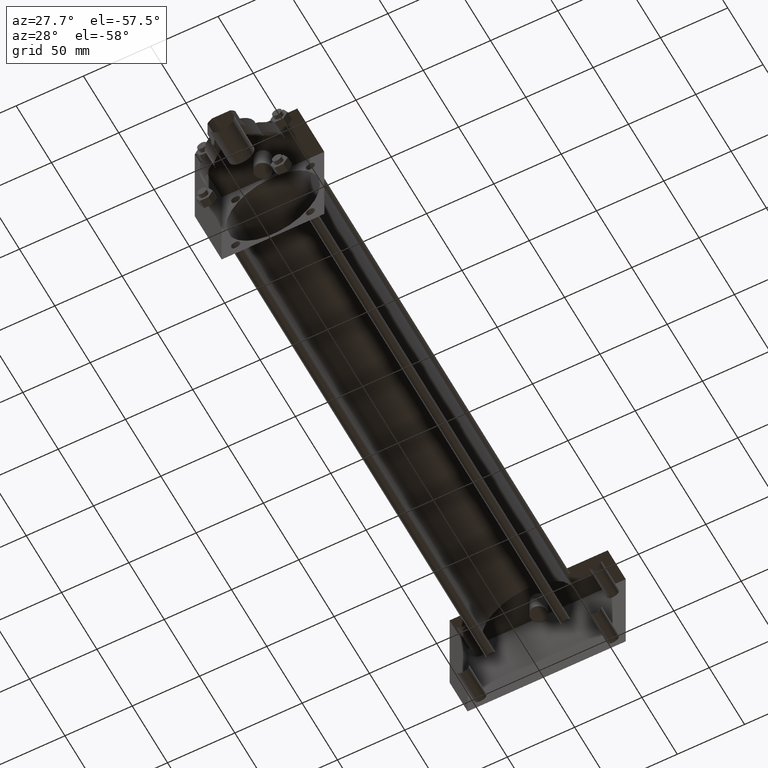
[diagram: clean part render]
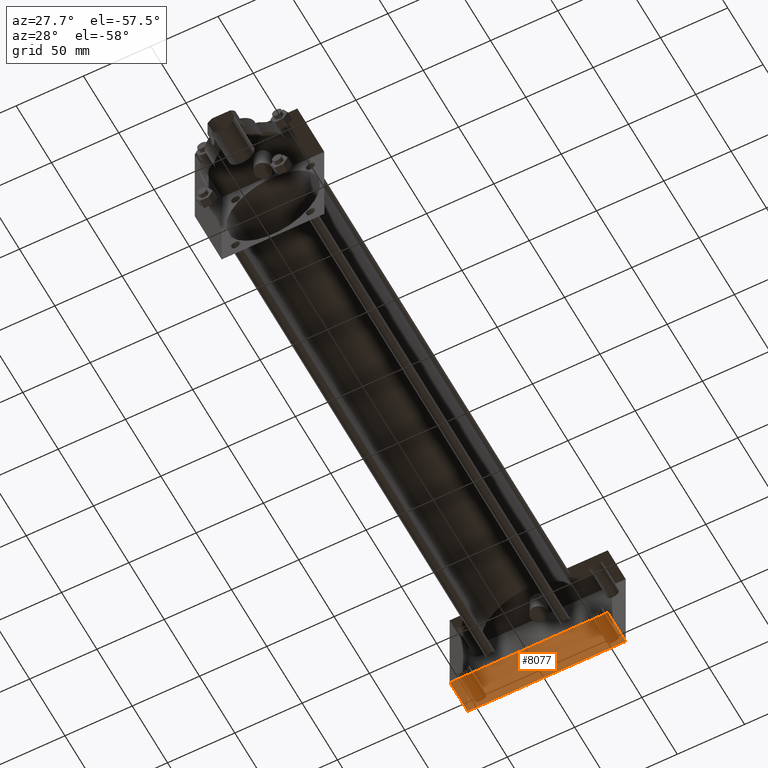
[diagram: same view with one face highlighted and labeled with its STEP entity id]
A machine part, auxiliary view. The second image highlights one B-rep face of the part: STEP entity #8077.
In plain terms, the highlighted planar face has unit normal (0, 0, -1).
Its self-contained STEP definition (entity closure, byte-faithful):
#3477=EDGE_CURVE('',#3482,#3483,#3478,.T.);
#3478=LINE('',#3479,#3480);
#3479=CARTESIAN_POINT('',(-5.873750000E+001,4.349750000E+002,-3.810000000E+001));
#3480=VECTOR('',#3481,1.0E+000);
#3481=DIRECTION('',(1.0E+000,0.0E+000,0.0E+000));
#3482=VERTEX_POINT('',#3484);
#3483=VERTEX_POINT('',#3485);
#3484=CARTESIAN_POINT('',(-5.873750000E+001,4.349750000E+002,-3.810000000E+001));
#3485=CARTESIAN_POINT('',(5.873750000E+001,4.349750000E+002,-3.810000000E+001));
#3681=VERTEX_POINT('',#3683);
#3683=CARTESIAN_POINT('',(-5.873750000E+001,4.603750000E+002,-3.810000000E+001));
#3684=EDGE_CURVE('',#3681,#3482,#3685,.T.);
#3685=LINE('',#3686,#3687);
#3686=CARTESIAN_POINT('',(-5.873750000E+001,4.603750000E+002,-3.810000000E+001));
#3687=VECTOR('',#3688,1.0E+000);
#3688=DIRECTION('',(0.0E+000,-1.0E+000,0.0E+000));
#3723=EDGE_CURVE('',#3728,#3483,#3724,.T.);
#3724=LINE('',#3725,#3726);
#3725=CARTESIAN_POINT('',(5.873750000E+001,4.603750000E+002,-3.810000000E+001));
#3726=VECTOR('',#3727,1.0E+000);
#3727=DIRECTION('',(0.0E+000,-1.0E+000,0.0E+000));
#3728=VERTEX_POINT('',#3729);
#3729=CARTESIAN_POINT('',(5.873750000E+001,4.603750000E+002,-3.810000000E+001));
#3749=FACE_OUTER_BOUND('',#3751,.T.);
#3750=FACE_BOUND('',#3752,.T.);
#3751=EDGE_LOOP('',(#3753,#3754,#3755,#3756));
#3752=EDGE_LOOP('',(#3762));
#3753=ORIENTED_EDGE('',*,*,#3723,.T.);
#3754=ORIENTED_EDGE('',*,*,#3477,.F.);
#3755=ORIENTED_EDGE('',*,*,#3684,.F.);
#3756=ORIENTED_EDGE('',*,*,#3757,.T.);
#3757=EDGE_CURVE('',#3681,#3728,#3758,.T.);
#3758=LINE('',#3759,#3760);
#3759=CARTESIAN_POINT('',(-5.873750000E+001,4.603750000E+002,-3.810000000E+001));
#3760=VECTOR('',#3761,1.0E+000);
#3761=DIRECTION('',(1.0E+000,0.0E+000,0.0E+000));
#3762=ORIENTED_EDGE('',*,*,#3763,.T.);
#3763=EDGE_CURVE('',#3769,#3769,#3764,.T.);
#3764=CIRCLE('',#3765,2.778125000E+000);
#3765=AXIS2_PLACEMENT_3D('',#3766,#3767,#3768);
#3766=CARTESIAN_POINT('',(0.000000000E+000,4.524375000E+002,-3.810000000E+001));
#3767=DIRECTION('',(0.0E+000,0.0E+000,1.0E+000));
#3768=DIRECTION('',(0.0E+000,1.0E+000,0.0E+000));
#3769=VERTEX_POINT('',#3770);
#3770=CARTESIAN_POINT('',(0.000000000E+000,4.552156250E+002,-3.810000000E+001));
#3771=PLANE('',#3772);
#3772=AXIS2_PLACEMENT_3D('',#3773,#3774,#3775);
#3773=CARTESIAN_POINT('',(-5.873750000E+001,4.603750000E+002,-3.810000000E+001));
#3774=DIRECTION('',(0.0E+000,0.0E+000,-1.0E+000));
#3775=DIRECTION('',(-1.0E+000,0.0E+000,0.0E+000));
#8077=ADVANCED_FACE('',(#3749,#3750),#3771,.T.);